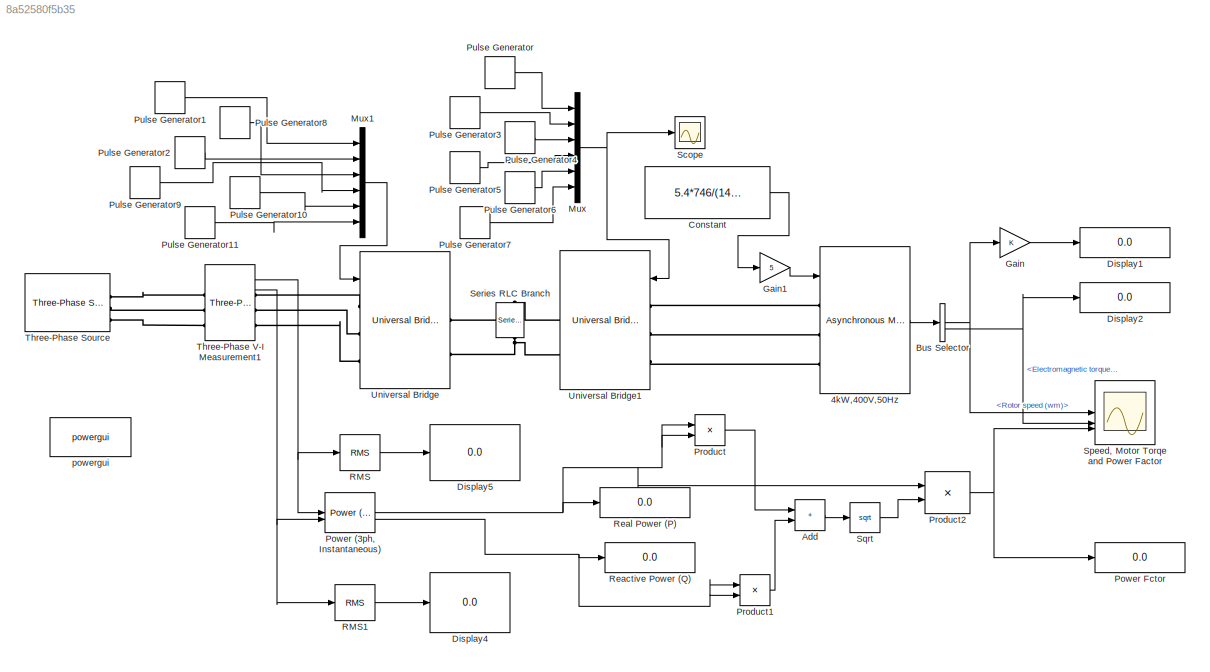
MODEL slx_8a52580f5b35
KIND model
CONFIG AbsTol = auto
CONFIG EnableMultiTasking = off
CONFIG FixedStep = auto
CONFIG MaxStep = auto
CONFIG MinStep = auto
CONFIG RelTol = 1e-3
CONFIG SampleTimeConstraint = Unconstrained
CONFIG SolverName = VariableStepAuto
CONFIG StartTime = 0.0
CONFIG StopTime = 2
BLOCK [Reference] 4kW,400V,50Hz  REF=spsAsynchronousMachineSIUnitsLib/Asynchronous Machine
SI Units
  LibrarySourceBlock = sps_lib/Electrical Machines/Asynchronous Machine\nSI Units
  SourceBlock = spsAsynchronousMachineSIUnitsLib/Asynchronous Machine\nSI Units
  SourceType = Asynchronous Machine
BLOCK [Sum] Add
  IconShape = rectangular
BLOCK [BusSelector] Bus Selector
  OutputSignals = Mechanical.Rotor speed (wm),Mechanical.Electromagnetic torque Te (N*m)
BLOCK [Constant] Constant
  Value = 5.4*746/(1430*2*pi/60)
BLOCK [Display] Display1
  Decimation = 1
BLOCK [Display] Display2
  Decimation = 1
BLOCK [Display] Display4
  Decimation = 1
BLOCK [Display] Display5
  Decimation = 1
BLOCK [Gain] Gain
BLOCK [Gain] Gain1
  Gain = 5
BLOCK [Mux] Mux
  DisplayOption = bar
  Inputs = 6
BLOCK [Mux] Mux1
  DisplayOption = bar
  Inputs = 6
BLOCK [Reference] Power (3ph, Instantaneous)  REF=spsPower3phInstantaneousLib/Power
(3ph, Instantaneous)
  LibrarySourceBlock = sps_lib/Sensors and Measurements/Power\n(3ph, Instantaneous)
  SourceBlock = spsPower3phInstantaneousLib/Power\n(3ph, Instantaneous)
  SourceType = Power (3ph, Instantaneous)
BLOCK [Display] Power Fctor
  Decimation = 1
BLOCK [Product] Product
BLOCK [Product] Product1
BLOCK [Product] Product2
  Inputs = */
BLOCK [DiscretePulseGenerator] Pulse Generator
  Period = 0.05
  PhaseDelay = 0.05/6
  PulseType = Time based
  PulseWidth = 50
BLOCK [DiscretePulseGenerator] Pulse Generator1
  Period = 1/50
  PulseType = Time based
  PulseWidth = 6.667e-3
BLOCK [DiscretePulseGenerator] Pulse Generator10
  Period = 1/50
  PhaseDelay = 240
  PulseType = Time based
  PulseWidth = 6.667e-3
BLOCK [DiscretePulseGenerator] Pulse Generator11
  Period = 1/50
  PhaseDelay = 300
  PulseType = Time based
  PulseWidth = 6.667e-3
BLOCK [DiscretePulseGenerator] Pulse Generator2
  Period = 1/50
  PhaseDelay = 60
  PulseType = Time based
  PulseWidth = 6.667e-3
BLOCK [DiscretePulseGenerator] Pulse Generator3
  Period = 0.05
  PhaseDelay = 2*(0.05/6)
  PulseType = Time based
  PulseWidth = 50
BLOCK [DiscretePulseGenerator] Pulse Generator4
  Period = 0.05
  PhaseDelay = 3*(0.05/6)
  PulseType = Time based
  PulseWidth = 50
BLOCK [DiscretePulseGenerator] Pulse Generator5
  Period = 0.05
  PhaseDelay = 4*(0.05/6)
  PulseType = Time based
  PulseWidth = 50
BLOCK [DiscretePulseGenerator] Pulse Generator6
  Period = 0.05
  PhaseDelay = 5*(0.05/6)
  PulseType = Time based
  PulseWidth = 50
BLOCK [DiscretePulseGenerator] Pulse Generator7
  Period = 0.05
  PhaseDelay = 6*(0.05/6)
  PulseType = Time based
  PulseWidth = 50
BLOCK [DiscretePulseGenerator] Pulse Generator8
  Period = 1/50
  PhaseDelay = 120
  PulseType = Time based
  PulseWidth = 6.667e-3
BLOCK [DiscretePulseGenerator] Pulse Generator9
  Period = 1/50
  PhaseDelay = 180
  PulseType = Time based
  PulseWidth = 6.667e-3
BLOCK [Reference] RMS  REF=spsRMSLib/RMS
  LibrarySourceBlock = sps_lib/Sensors and Measurements/RMS
  SourceBlock = spsRMSLib/RMS
  SourceType = RMS
BLOCK [Reference] RMS1  REF=spsRMSLib/RMS
  LibrarySourceBlock = sps_lib/Sensors and Measurements/RMS
  SourceBlock = spsRMSLib/RMS
  SourceType = RMS
BLOCK [Display] Reactive Power (Q)
  Decimation = 1
BLOCK [Display] Real Power (P)
  Decimation = 1
BLOCK [Scope] Scope
  Floating = off
  NumInputPorts = 1
  ScopeSpecificationString = Simulink.scopes.TimeScopeBlockCfg('CurrentConfiguration', extmgr.ConfigurationSet(extmgr.Configuration('Core','General UI',true),extmgr.Configuration('Core','Source UI',true),extmgr.Configuration('Sources','WiredSimulink',true,'DataLoggingVariableName','ScopeData1'),extmgr.Configuration('Visuals','Time Domain',true,'SerializedDisplays',{struct('MinYLimReal','-0.125','MaxYLimReal','1.125','YLabelRe...<+1621ch>
BLOCK [Reference] Series RLC Branch  REF=spsSeriesRLCBranchLib/Series RLC Branch
  LibrarySourceBlock = sps_lib/Passives/Series RLC Branch
  NameLocation = left
  SourceBlock = spsSeriesRLCBranchLib/Series RLC Branch
  SourceType = Series RLC Branch
BLOCK [Scope] Speed, Motor Torqe and Power Factor
  Floating = off
  NumInputPorts = 3
  ScopeSpecificationString = Simulink.scopes.TimeScopeBlockCfg('CurrentConfiguration', extmgr.ConfigurationSet(extmgr.Configuration('Core','General UI',true),extmgr.Configuration('Core','Source UI',true),extmgr.Configuration('Sources','WiredSimulink',true),extmgr.Configuration('Visuals','Time Domain',true,'SerializedDisplays',{struct('MinYLimReal','0.70588','MaxYLimReal','1.03679','YLabelReal','','MinYLimMag','0.70588','MaxYL...<+1569ch>
BLOCK [Sqrt] Sqrt
BLOCK [Reference] Three-Phase Source  REF=spsThreePhaseSourceLib/Three-Phase Source
  LibrarySourceBlock = sps_lib/Sources/Three-Phase Source
  SourceBlock = spsThreePhaseSourceLib/Three-Phase Source
  SourceType = Three-Phase Source
BLOCK [Reference] Three-Phase V-I Measurement1  REF=spsThreePhaseVIMeasurementLib/Three-Phase
V-I Measurement
  LibrarySourceBlock = sps_lib/Sensors and Measurements/Three-Phase\nV-I Measurement
  SourceBlock = spsThreePhaseVIMeasurementLib/Three-Phase\nV-I Measurement
  SourceType = Three-Phase VI Measurement
BLOCK [Reference] Universal Bridge  REF=spsUniversalBridgeLib/Universal Bridge
  LibrarySourceBlock = sps_lib/Power Electronics/Universal Bridge
  SourceBlock = spsUniversalBridgeLib/Universal Bridge
  SourceType = Universal Bridge
BLOCK [Reference] Universal Bridge1  REF=spsUniversalBridgeLib/Universal Bridge
  LibrarySourceBlock = sps_lib/Power Electronics/Universal Bridge
  SourceBlock = spsUniversalBridgeLib/Universal Bridge
  SourceType = Universal Bridge
BLOCK [Reference] powergui  REF=sps_lib/powergui
  LibrarySourceBlock = sps_lib/powergui
  Priority = 1
  SourceBlock = sps_lib/powergui
  SourceType = PSB option menu block
LINE 4kW,400V,50Hz:1 -> Bus Selector:1
LINE Add:1 -> Sqrt:1
NET Bus Selector:1 -> Gain:1, Speed, Motor Torqe and Power Factor:1
NET Bus Selector:2 -> Display2:1, Speed, Motor Torqe and Power Factor:2
LINE Constant:1 -> Gain1:1
LINE Gain1:1 -> 4kW,400V,50Hz:1
LINE Gain:1 -> Display1:1
LINE Mux1:1 -> Universal Bridge:1
NET Mux:1 -> Scope:1, Universal Bridge1:1
NET Power (3ph, Instantaneous):1 -> Product2:1, Product:1, Product:2, Real Power (P):1
NET Power (3ph, Instantaneous):2 -> Product1:1, Product1:2, Reactive Power (Q):1
LINE Product1:1 -> Add:2
NET Product2:1 -> Power Fctor:1, Speed, Motor Torqe and Power Factor:3
LINE Product:1 -> Add:1
LINE Pulse Generator10:1 -> Mux1:5
LINE Pulse Generator11:1 -> Mux1:6
LINE Pulse Generator1:1 -> Mux1:1
LINE Pulse Generator2:1 -> Mux1:2
LINE Pulse Generator3:1 -> Mux:2
LINE Pulse Generator4:1 -> Mux:3
LINE Pulse Generator5:1 -> Mux:4
LINE Pulse Generator6:1 -> Mux:5
LINE Pulse Generator7:1 -> Mux:6
LINE Pulse Generator8:1 -> Mux1:3
LINE Pulse Generator9:1 -> Mux1:4
LINE Pulse Generator:1 -> Mux:1
LINE RMS1:1 -> Display4:1
LINE RMS:1 -> Display5:1
LINE Sqrt:1 -> Product2:2
NET Three-Phase V-I Measurement1:1 -> Power (3ph, Instantaneous):1, RMS:1
NET Three-Phase V-I Measurement1:2 -> Power (3ph, Instantaneous):2, RMS1:1
PLINE 4kW,400V,50Hz:LConn1 -- Universal Bridge1:LConn1
PLINE 4kW,400V,50Hz:LConn2 -- Universal Bridge1:LConn2
PLINE 4kW,400V,50Hz:LConn3 -- Universal Bridge1:LConn3
PNET net1: Series RLC Branch:LConn1 -- Universal Bridge1:RConn1 -- Universal Bridge:RConn1
PNET net2: Series RLC Branch:RConn1 -- Universal Bridge1:RConn2 -- Universal Bridge:RConn2
PLINE Three-Phase Source:RConn1 -- Three-Phase V-I Measurement1:LConn1
PLINE Three-Phase Source:RConn2 -- Three-Phase V-I Measurement1:LConn2
PLINE Three-Phase Source:RConn3 -- Three-Phase V-I Measurement1:LConn3
PLINE Three-Phase V-I Measurement1:RConn1 -- Universal Bridge:LConn1
PLINE Three-Phase V-I Measurement1:RConn2 -- Universal Bridge:LConn2
PLINE Three-Phase V-I Measurement1:RConn3 -- Universal Bridge:LConn3
note: NET lines group one-source signal fan-out (src -> all destinations, sorted); 1:1 wires keep LINE; PNET lines group multi-terminal physical nets as a canonical sorted terminal list (undirected conserving connections); 2-terminal nets keep the pairwise PLINE form
